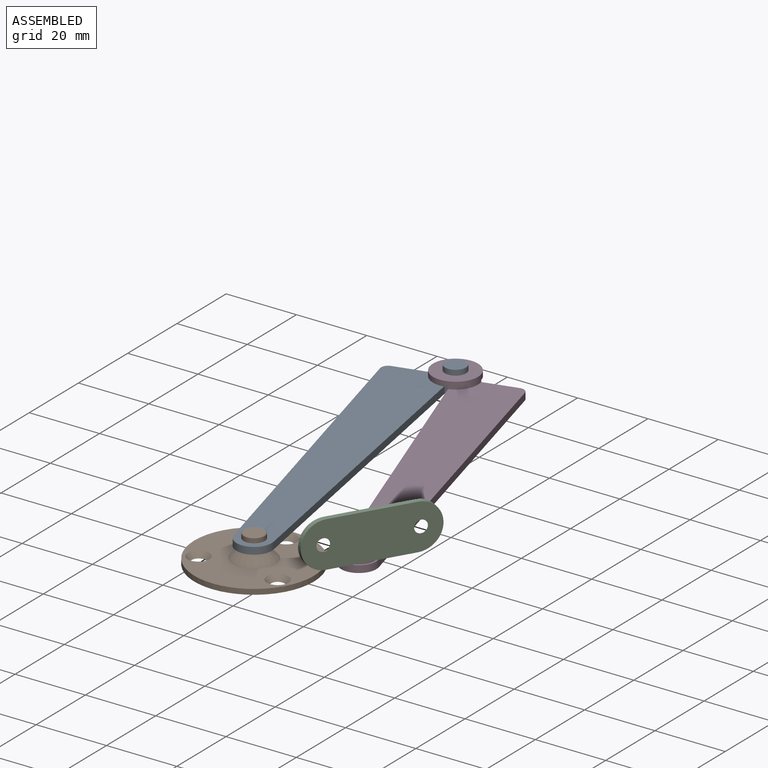
[diagram: assembled view]
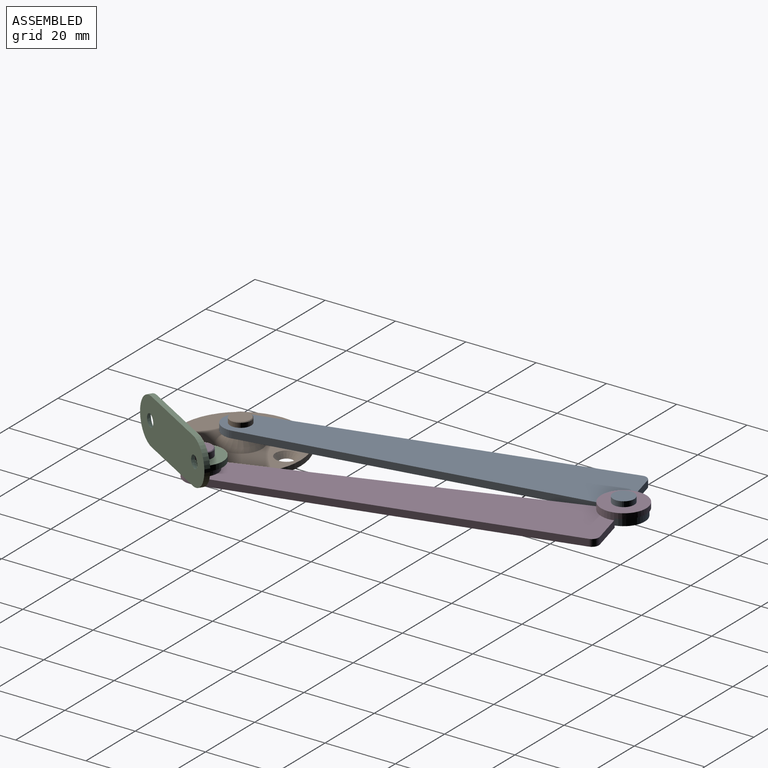
[diagram: assembled view, second angle]
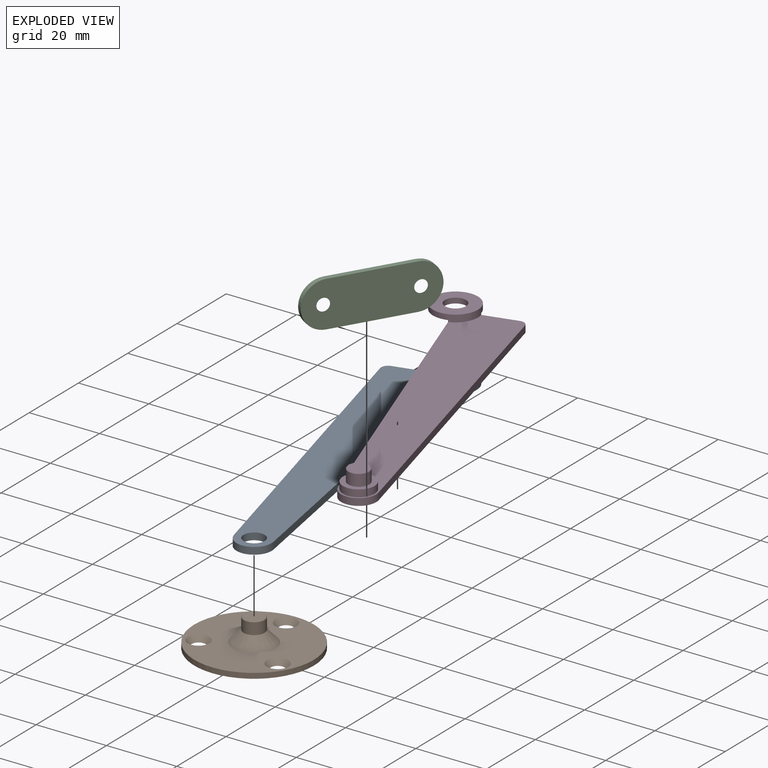
[diagram: exploded view]
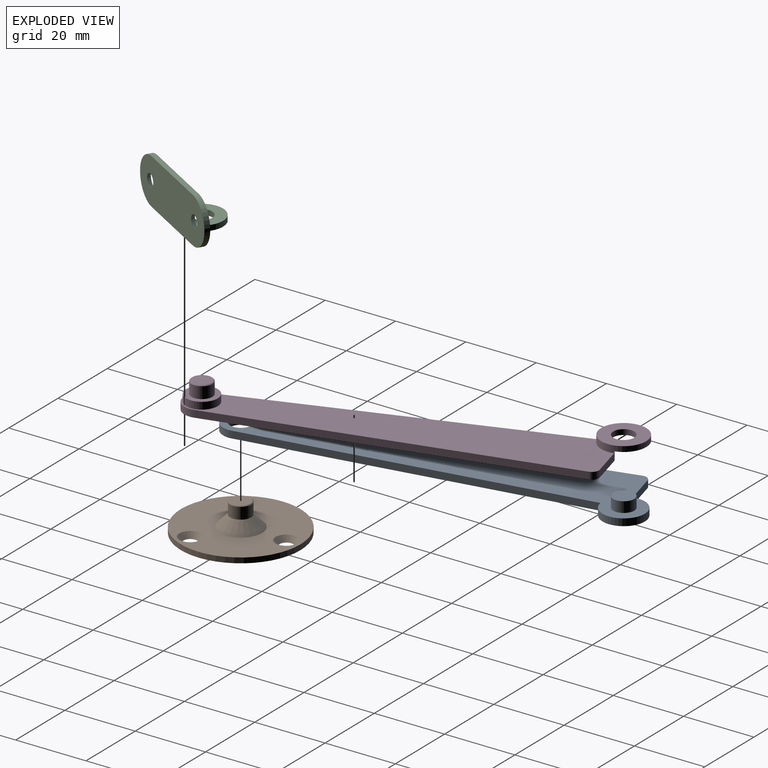
[diagram: exploded view, second angle]
ASSEMBLY  parts=4 mates=3
PART A: 11 faces, bbox 111x24x5 mm
  f0: plane 94.42x7.54mm, normal (-0.08,-1,0), area 189.4mm2, adj f3,f6,f7,f10
  f1: plane 10x2mm, normal (1,0,0), area 20mm2, adj f5,f6,f7,f10
  f2: plane 98x2mm, normal (0,1,0), area 196mm2, adj f3,f5,f6,f7
  f3: cylinder r=5mm len=9.98mm, axis (0,0,-1), area 30.6mm2, adj f0,f2,f6,f7
  f4: cylinder r=3mm len=6mm, axis (0,0,-1), area 37.7mm2, adj f6,f7
  f5: cylinder r=2mm len=2mm, axis (0,0,-1), area 6.3mm2, adj f1,f2,f6,f7
  f6: plane 111x24mm, normal (0,0,1), area 1468.9mm2, adj f0,f1,f2,f3,f4,f5,f8,f10
  f7: plane 111x24mm, normal (0,0,-1), area 1497.2mm2, adj f0,f1,f2,f3,f4,f5,f10
  f8: cylinder r=3mm len=6mm, axis (0,0,-1), area 56.5mm2, adj f6,f9
  f9: plane 6x6mm, normal (0,0,1), area 28.3mm2, adj f8
  f10: cylinder r=6mm len=12mm, axis (0,0,-1), area 57.5mm2, adj f0,f1,f6,f7
PART B: 10 faces, bbox 34x34x8.2 mm
  f0: cylinder r=17mm len=34mm, axis (0,0,-1), area 160.2mm2, adj f1,f2
  f1: plane 34x34mm, normal (0,0,1), area 701.8mm2, adj f0,f6,f7,f8,f9
  f2: plane 34x34mm, normal (0,0,-1), area 873.9mm2, adj f0,f7,f8,f9
  f3: plane 5.6x5.6mm, normal (0,0,1), area 24.6mm2, adj f4
  f4: cone r=2.8mm half-angle=45deg, axis (0,0,-1), area 5.2mm2, adj f3,f5
  f5: cylinder r=3mm len=6mm, axis (0,0,-1), area 62.2mm2, adj f4,f6
  f6: cone r=3mm half-angle=43.8deg, axis (0,0,-1), area 126.2mm2, adj f1,f5
  f7: cone r=3.1mm half-angle=38.7deg, axis (0,0,1), area 30.2mm2, adj f1,f2
  f8: cone r=3.1mm half-angle=38.7deg, axis (0,0,1), area 30.2mm2, adj f1,f2
  f9: cone r=3.1mm half-angle=38.7deg, axis (0,0,1), area 30.2mm2, adj f1,f2
PART C: 13 faces, bbox 36.5x13.6x13 mm
  f0: plane 23.5x1.5mm, normal (0,0,1), area 35.2mm2, adj f1,f2,f11,f12
  f1: plane 36.5x13mm, normal (0,-1,0), area 419mm2, adj f0,f3,f9,f10,f11,f12
  f2: plane 36.5x13mm, normal (0,1,0), area 363.7mm2, adj f0,f3,f4,f7,f8,f9,f10,f11
  f3: plane 23.5x13.6mm, normal (0,0,-1), area 136.7mm2, adj f1,f2,f4,f5,f6,f7,f11,f12
  f4: plane 6.1x1.5mm, normal (1,0,0), area 9.1mm2, adj f2,f3,f5,f8
  f5: cylinder r=6mm len=12mm, axis (0,0,-1), area 28.3mm2, adj f3,f4,f7,f8
  f6: cylinder r=3mm len=6mm, axis (0,0,-1), area 28.3mm2, adj f3,f8
  f7: plane 6.1x1.5mm, normal (-1,0,0), area 9.1mm2, adj f2,f3,f5,f8
  f8: plane 12.1x12mm, normal (0,0,1), area 101.5mm2, adj f2,f4,f5,f6,f7
  f9: cone r=1.75mm half-angle=39.8deg, axis (0,1,0), area 29.1mm2, adj f1,f2
  f10: cone r=1.75mm half-angle=39.8deg, axis (0,1,0), area 29.1mm2, adj f1,f2
  f11: cylinder r=6.5mm len=13mm, axis (0,-1,0), area 30.6mm2, adj f0,f1,f2,f3
  f12: cylinder r=6.5mm len=13mm, axis (0,-1,0), area 30.6mm2, adj f0,f1,f2,f3
PART D: 20 faces, bbox 111.4x24.4x8 mm
  f0: plane 105x17.51mm, normal (0,0,-1), area 1383.2mm2, adj f2,f4,f5,f6,f7,f8,f13
  f1: cylinder r=6.4mm len=12.8mm, axis (0,0,-1), area 65.1mm2, adj f4,f5,f9,f10,f19
  f2: cylinder r=6.1mm len=6.08mm, axis (0,0,-1), area 22.7mm2, adj f0,f4,f5,f19
  f3: cylinder r=3mm len=6mm, axis (0,0,-1), area 28.3mm2, adj f10,f19
  f4: plane 9.9x2.5mm, normal (-1,0,0), area 19.9mm2, adj f0,f1,f2,f6,f9,f19
  f5: plane 94.32x7.53mm, normal (0.08,-1,0), area 189.4mm2, adj f0,f1,f2,f7,f9,f19
  f6: cylinder r=2mm len=2mm, axis (0,0,-1), area 6.3mm2, adj f0,f4,f8,f9
  f7: cylinder r=5mm len=9.98mm, axis (0,0,-1), area 30.6mm2, adj f0,f5,f8,f9
  f8: plane 98x2mm, normal (0,1,0), area 196mm2, adj f0,f6,f7,f9
  f9: plane 105x17.49mm, normal (0,0,1), area 1345.1mm2, adj f1,f4,f5,f6,f7,f8,f18
  f10: plane 12.8x12.8mm, normal (0,0,1), area 100.4mm2, adj f1,f3
  f11: plane 5.6x5.6mm, normal (0,0,-1), area 24.6mm2, adj f12
  f12: cone r=3mm half-angle=45deg, axis (0,0,1), area 5.2mm2, adj f11,f13
  f13: cylinder r=3mm len=6mm, axis (0,0,-1), area 5.7mm2, adj f0,f12
  f14: plane 5.6x5.6mm, normal (0,0,1), area 24.6mm2, adj f15
  f15: cone r=2.8mm half-angle=45deg, axis (0,0,-1), area 5.2mm2, adj f14,f16
  f16: cylinder r=3mm len=6mm, axis (0,0,-1), area 62.2mm2, adj f15,f17
  f17: plane 9x9mm, normal (0,0,1), area 35.3mm2, adj f16,f18
  f18: cylinder r=4.5mm len=9mm, axis (0,0,-1), area 56.5mm2, adj f9,f17
  f19: plane 12.8x12.8mm, normal (0,0,-1), area 97.6mm2, adj f1,f2,f3,f4,f5
PLACE A rot(axis=(0,0,1),104.7deg) t=(0,0,0)mm
PLACE B t=(0,0,-4.7)mm fixed
PLACE C rot(axis=(0,0,1),59.3deg) t=(25.15,6.59,3.5)mm
PLACE D rot(axis=(0,0,-1),75.3deg) t=(-0.18,103.32,-0.5)mm
MATE revolute B.f0 <-> A.f4  axis (0,0,-1) through (0,0,0)mm
MATE revolute D.f12 <-> C.f5  axis (0,0,-1) through (25.15,6.59,3.5)mm
MATE revolute D.f1 <-> A.f8  axis (0,0,-1) through (-12.76,100.03,2)mm
